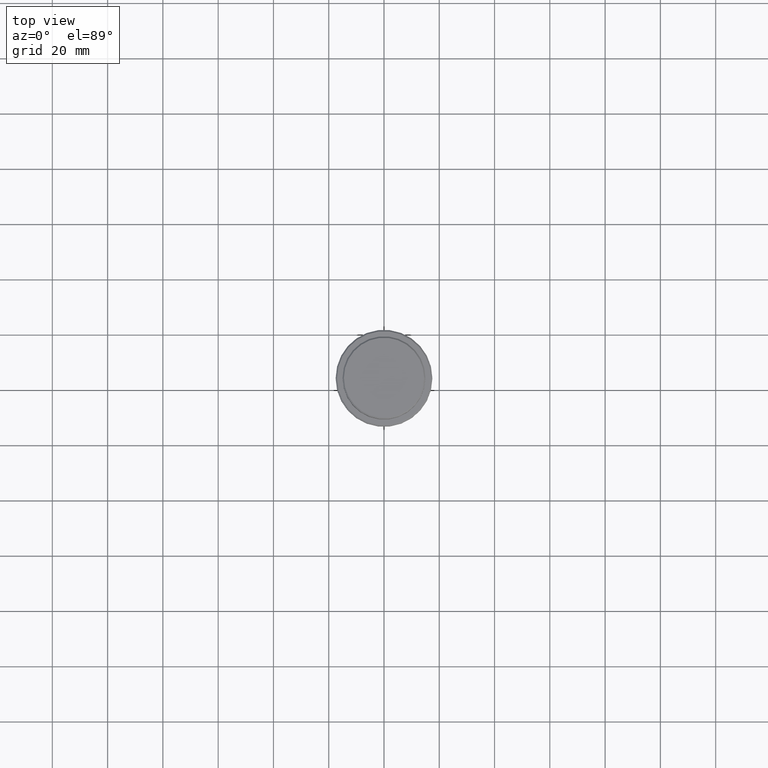
[diagram: clean part render]
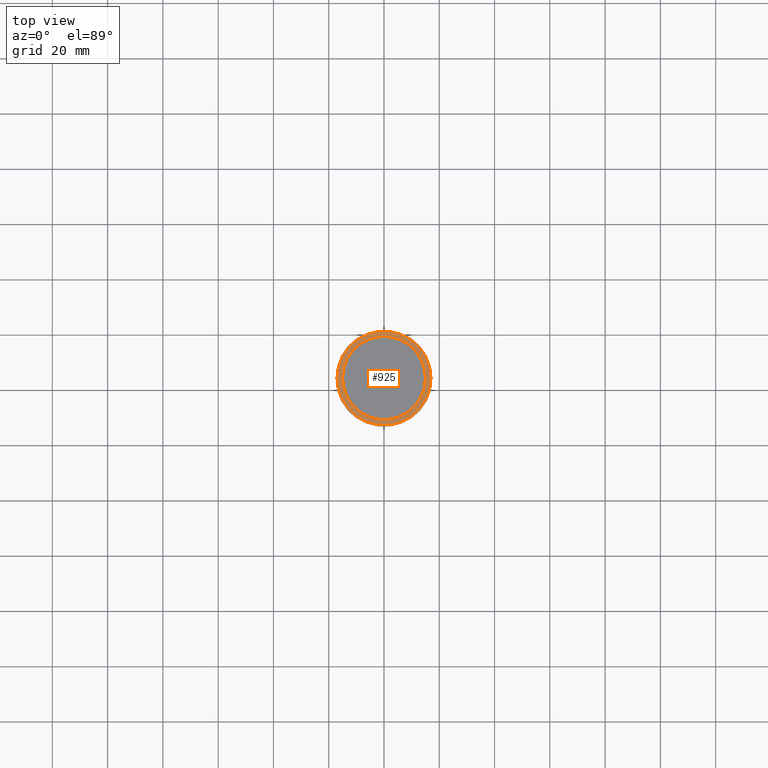
[diagram: same view with one face highlighted and labeled with its STEP entity id]
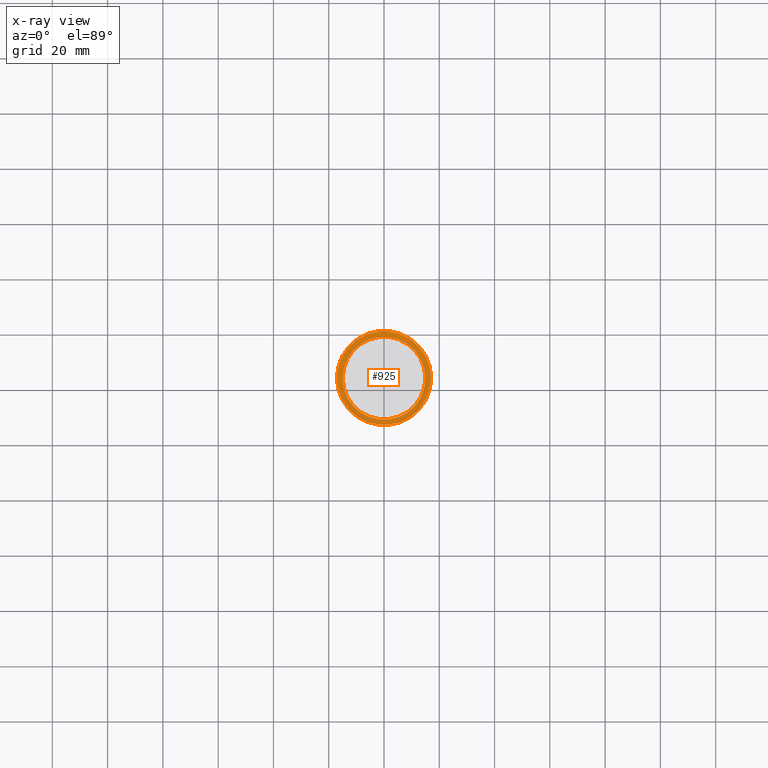
[diagram: x-ray of the same camera — body ghosted, the highlighted face saturated]
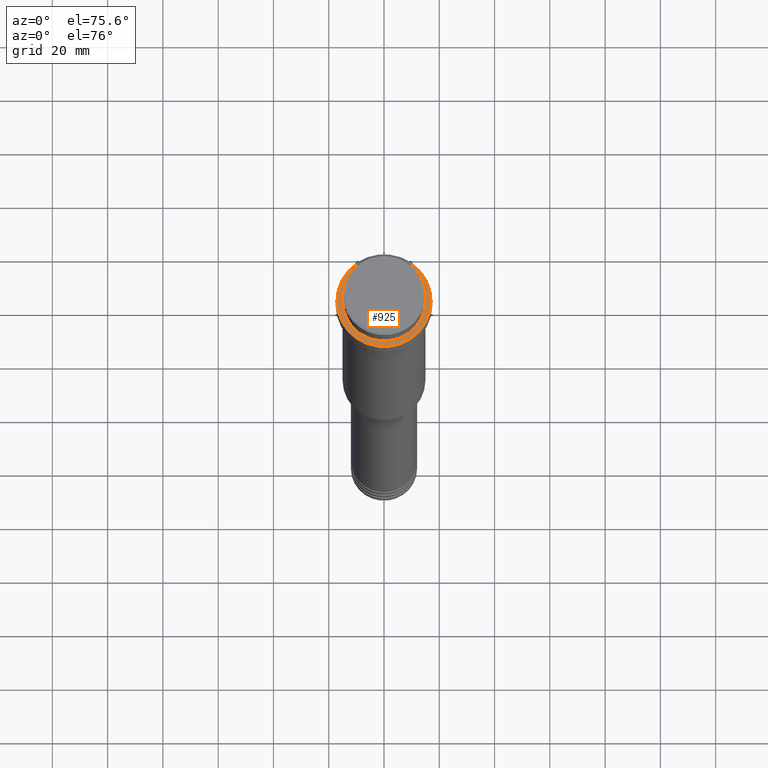
[diagram: same view with one face highlighted and labeled with its STEP entity id]
A machine part, top view. The second image highlights one B-rep face of the part: STEP entity #925.
The next image is the same camera in x-ray: the body ghosted, the highlighted face saturated — about 0% of this face is hidden behind the body in this view.
A second angle (auxiliary view) of the same face is appended — the face is thin or edge-on in the first view.
In plain terms, the highlighted planar face has unit normal (0, -0, 1).
Its self-contained STEP definition (entity closure, byte-faithful):
#50 = DIRECTION ( 'NONE',  ( 0.000000000000000000, 0.000000000000000000, -1.000000000000000000 ) ) ;
#58 = CARTESIAN_POINT ( 'NONE',  ( 0.000000000000000000, 0.000000000000000000, -9.000000000000001776 ) ) ;
#84 = DIRECTION ( 'NONE',  ( 1.000000000000000000, 0.000000000000000000, 0.000000000000000000 ) ) ;
#85 = EDGE_CURVE ( 'NONE', #912, #619, #1187, .T. ) ;
#91 = AXIS2_PLACEMENT_3D ( 'NONE', #1176, #625, #84 ) ;
#99 = DIRECTION ( 'NONE',  ( 1.000000000000000000, 0.000000000000000000, 0.000000000000000000 ) ) ;
#179 = ORIENTED_EDGE ( 'NONE', *, *, #810, .T. ) ;
#184 = AXIS2_PLACEMENT_3D ( 'NONE', #58, #50, #599 ) ;
#218 = CARTESIAN_POINT ( 'NONE',  ( 0.000000000000000000, 0.000000000000000000, -9.000000000000001776 ) ) ;
#233 = CARTESIAN_POINT ( 'NONE',  ( 14.99999999999999467, 0.000000000000000000, -9.000000000000001776 ) ) ;
#246 = AXIS2_PLACEMENT_3D ( 'NONE', #218, #963, #99 ) ;
#277 = EDGE_CURVE ( 'NONE', #744, #567, #543, .T. ) ;
#298 = FACE_BOUND ( 'NONE', #1010, .T. ) ;
#334 = ORIENTED_EDGE ( 'NONE', *, *, #344, .T. ) ;
#344 = EDGE_CURVE ( 'NONE', #567, #744, #565, .T. ) ;
#368 = EDGE_LOOP ( 'NONE', ( #334, #555 ) ) ;
#538 = CARTESIAN_POINT ( 'NONE',  ( -17.00000000000001421, 0.000000000000000000, -9.000000000000001776 ) ) ;
#543 = CIRCLE ( 'NONE', #1090, 17.00000000000001421 ) ;
#555 = ORIENTED_EDGE ( 'NONE', *, *, #277, .T. ) ;
#561 = CARTESIAN_POINT ( 'NONE',  ( 0.000000000000000000, 0.000000000000000000, -9.000000000000001776 ) ) ;
#565 = CIRCLE ( 'NONE', #834, 17.00000000000001421 ) ;
#567 = VERTEX_POINT ( 'NONE', #538 ) ;
#599 = DIRECTION ( 'NONE',  ( 1.000000000000000000, 0.000000000000000000, 0.000000000000000000 ) ) ;
#619 = VERTEX_POINT ( 'NONE', #233 ) ;
#625 = DIRECTION ( 'NONE',  ( 0.000000000000000000, -0.000000000000000000, 1.000000000000000000 ) ) ;
#714 = CARTESIAN_POINT ( 'NONE',  ( 0.000000000000000000, 0.000000000000000000, -9.000000000000001776 ) ) ;
#726 = DIRECTION ( 'NONE',  ( -0.000000000000000000, -0.000000000000000000, 1.000000000000000000 ) ) ;
#744 = VERTEX_POINT ( 'NONE', #1240 ) ;
#779 = DIRECTION ( 'NONE',  ( 1.000000000000000000, 0.000000000000000000, 0.000000000000000000 ) ) ;
#810 = EDGE_CURVE ( 'NONE', #619, #912, #1325, .T. ) ;
#834 = AXIS2_PLACEMENT_3D ( 'NONE', #714, #726, #1144 ) ;
#912 = VERTEX_POINT ( 'NONE', #955 ) ;
#925 = ADVANCED_FACE ( 'NONE', ( #1271, #298 ), #1062, .T. ) ;
#955 = CARTESIAN_POINT ( 'NONE',  ( -14.99999999999999467, 1.836970198721029194E-15, -9.000000000000001776 ) ) ;
#963 = DIRECTION ( 'NONE',  ( 0.000000000000000000, 0.000000000000000000, -1.000000000000000000 ) ) ;
#1010 = EDGE_LOOP ( 'NONE', ( #179, #1031 ) ) ;
#1031 = ORIENTED_EDGE ( 'NONE', *, *, #85, .T. ) ;
#1062 = PLANE ( 'NONE',  #91 ) ;
#1090 = AXIS2_PLACEMENT_3D ( 'NONE', #561, #1225, #779 ) ;
#1144 = DIRECTION ( 'NONE',  ( 1.000000000000000000, 0.000000000000000000, 0.000000000000000000 ) ) ;
#1176 = CARTESIAN_POINT ( 'NONE',  ( 0.000000000000000000, 14.49999999999999467, -9.000000000000001776 ) ) ;
#1187 = CIRCLE ( 'NONE', #246, 14.99999999999999467 ) ;
#1225 = DIRECTION ( 'NONE',  ( -0.000000000000000000, -0.000000000000000000, 1.000000000000000000 ) ) ;
#1240 = CARTESIAN_POINT ( 'NONE',  ( 17.00000000000001421, 2.112515728529185250E-15, -9.000000000000001776 ) ) ;
#1271 = FACE_OUTER_BOUND ( 'NONE', #368, .T. ) ;
#1325 = CIRCLE ( 'NONE', #184, 14.99999999999999467 ) ;